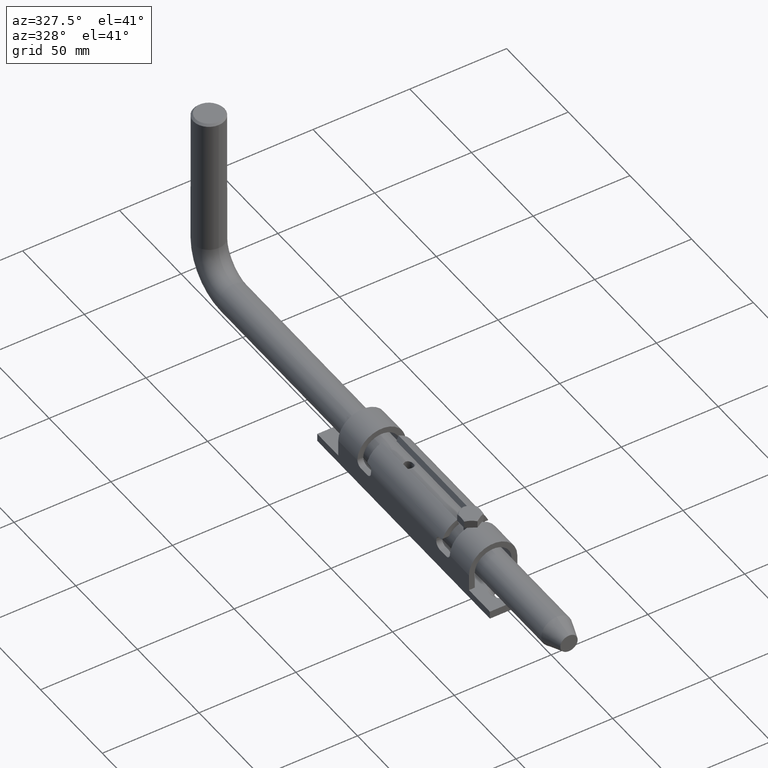
[diagram: clean part render]
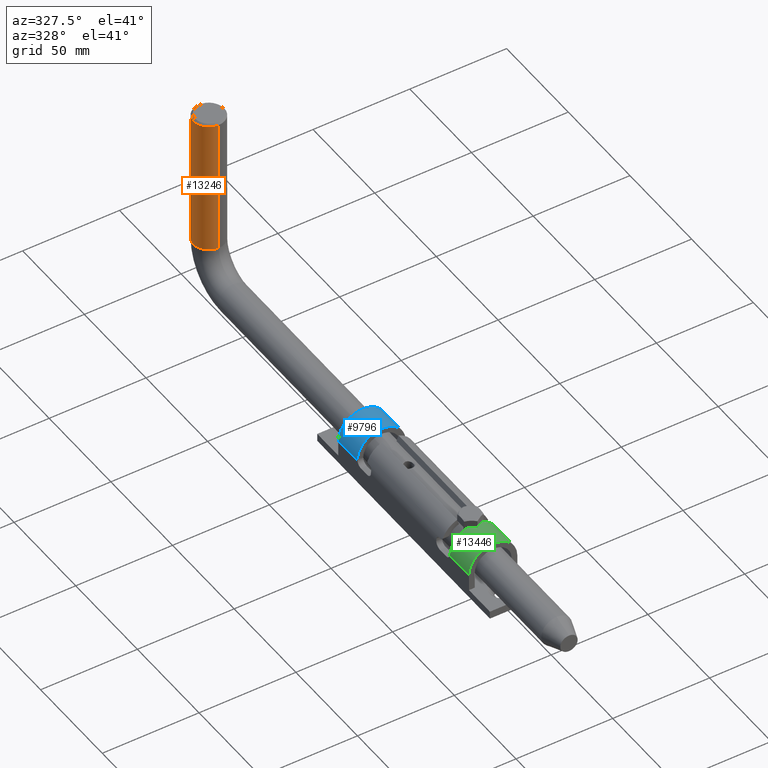
[diagram: same view with three faces highlighted in distinct colors, each labeled with its STEP entity id]
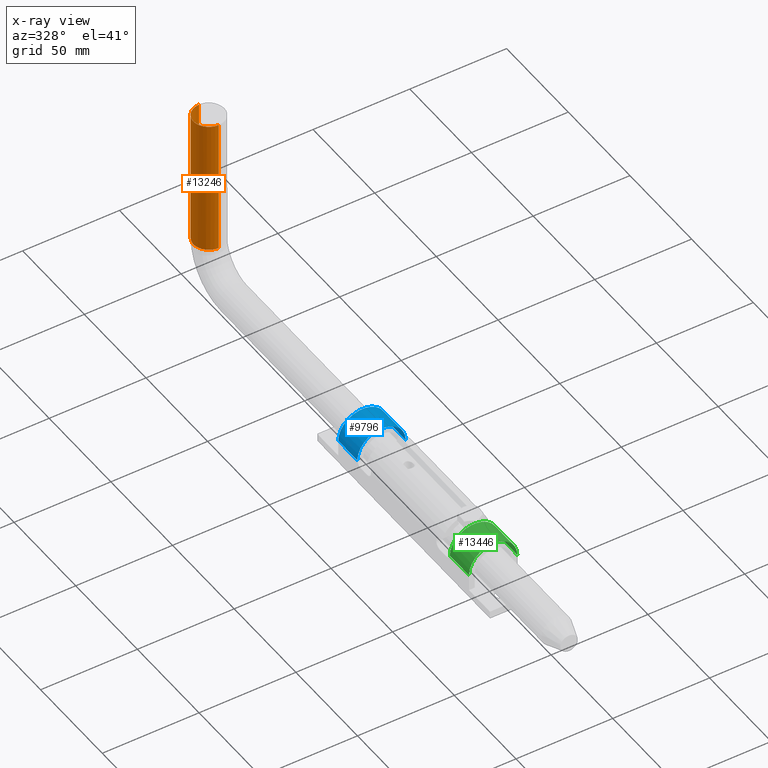
[diagram: x-ray of the same camera — body ghosted, the three highlighted faces saturated]
A machine part, auxiliary view with three faces highlighted in distinct colors.
The next image is the same camera in x-ray (body ghosted, the three faces saturated) — at least one of them is partly hidden behind the body in this view.
Their STEP definitions:

[orange] entity #13246 — the highlighted cylindrical surface (edge-blend (fillet) strip) has radius 8 mm, axis along (0, 0, 1).
#65 = CIRCLE ( 'NONE', #5183, 8.000000000000000000 ) ;
#1729 = VERTEX_POINT ( 'NONE', #17639 ) ;
#1798 = DIRECTION ( 'NONE',  ( 0.000000000000000000, 7.709882115452476194E-16, 1.000000000000000000 ) ) ;
#2365 = FACE_OUTER_BOUND ( 'NONE', #8507, .T. ) ;
#2414 = ORIENTED_EDGE ( 'NONE', *, *, #5781, .T. ) ;
#4025 = CARTESIAN_POINT ( 'NONE',  ( 9.797174393178882850E-16, 300.0000000000000000, 91.00000000000002842 ) ) ;
#4509 = ORIENTED_EDGE ( 'NONE', *, *, #13094, .T. ) ;
#4888 = LINE ( 'NONE', #16339, #11372 ) ;
#5015 = VERTEX_POINT ( 'NONE', #18970 ) ;
#5183 = AXIS2_PLACEMENT_3D ( 'NONE', #11615, #9803, #21358 ) ;
#5202 = LINE ( 'NONE', #14517, #14537 ) ;
#5503 = CIRCLE ( 'NONE', #10866, 8.000000000000007105 ) ;
#5781 = EDGE_CURVE ( 'NONE', #12727, #11569, #4888, .T. ) ;
#5949 = VERTEX_POINT ( 'NONE', #4025 ) ;
#6101 = DIRECTION ( 'NONE',  ( 0.000000000000000000, 7.709882115452476194E-16, 1.000000000000000000 ) ) ;
#7376 = DIRECTION ( 'NONE',  ( 0.000000000000000000, -1.000000000000000000, 0.000000000000000000 ) ) ;
#8507 = EDGE_LOOP ( 'NONE', ( #19725, #20888, #2414, #19670, #4509 ) ) ;
#8607 = CARTESIAN_POINT ( 'NONE',  ( 0.000000000000000000, 284.0000000000000000, 91.00000000000002842 ) ) ;
#9017 = DIRECTION ( 'NONE',  ( 1.000000000000000000, 0.000000000000000000, 0.000000000000000000 ) ) ;
#9803 = DIRECTION ( 'NONE',  ( 0.000000000000000000, 0.000000000000000000, -1.000000000000000000 ) ) ;
#10866 = AXIS2_PLACEMENT_3D ( 'NONE', #12240, #17291, #7376 ) ;
#11020 = AXIS2_PLACEMENT_3D ( 'NONE', #15550, #11870, #9017 ) ;
#11372 = VECTOR ( 'NONE', #1798, 1000.000000000000000 ) ;
#11569 = VERTEX_POINT ( 'NONE', #8607 ) ;
#11615 = CARTESIAN_POINT ( 'NONE',  ( 0.000000000000000000, 292.0000000000000000, 91.00000000000002842 ) ) ;
#11846 = EDGE_CURVE ( 'NONE', #1729, #12727, #5503, .T. ) ;
#11870 = DIRECTION ( 'NONE',  ( 0.000000000000000000, 0.000000000000000000, -1.000000000000000000 ) ) ;
#12125 = CARTESIAN_POINT ( 'NONE',  ( 0.000000000000000000, 283.9999999999999432, 20.00000000000000355 ) ) ;
#12240 = CARTESIAN_POINT ( 'NONE',  ( 0.000000000000000000, 291.9999999999999432, 20.00000000000000355 ) ) ;
#12727 = VERTEX_POINT ( 'NONE', #12125 ) ;
#13094 = EDGE_CURVE ( 'NONE', #5015, #5949, #65, .T. ) ;
#13246 = ADVANCED_FACE ( 'NONE', ( #2365 ), #20479, .T. ) ;
#14517 = CARTESIAN_POINT ( 'NONE',  ( 9.797174393178825657E-16, 299.9999999999999432, 19.99999999999999645 ) ) ;
#14537 = VECTOR ( 'NONE', #6101, 1000.000000000000000 ) ;
#14997 = DIRECTION ( 'NONE',  ( 0.000000000000000000, 7.709882115452476194E-16, 1.000000000000000000 ) ) ;
#15211 = DIRECTION ( 'NONE',  ( 0.000000000000000000, -1.000000000000000000, 8.673617379884027583E-16 ) ) ;
#15550 = CARTESIAN_POINT ( 'NONE',  ( 0.000000000000000000, 292.0000000000000000, 91.00000000000002842 ) ) ;
#16002 = EDGE_CURVE ( 'NONE', #1729, #5949, #5202, .T. ) ;
#16339 = CARTESIAN_POINT ( 'NONE',  ( 0.000000000000000000, 283.9999999999999432, 20.00000000000001066 ) ) ;
#16862 = CARTESIAN_POINT ( 'NONE',  ( 0.000000000000000000, 291.9999999999999432, 20.00000000000000355 ) ) ;
#17291 = DIRECTION ( 'NONE',  ( 0.000000000000000000, -1.734723475976805615E-16, 1.000000000000000000 ) ) ;
#17639 = CARTESIAN_POINT ( 'NONE',  ( 9.797174393178815797E-16, 299.9999999999999432, 20.00000000000000355 ) ) ;
#18670 = CIRCLE ( 'NONE', #11020, 8.000000000000000000 ) ;
#18970 = CARTESIAN_POINT ( 'NONE',  ( -8.000000000000000000, 292.0000000000000000, 91.00000000000002842 ) ) ;
#19498 = EDGE_CURVE ( 'NONE', #11569, #5015, #18670, .T. ) ;
#19670 = ORIENTED_EDGE ( 'NONE', *, *, #19498, .T. ) ;
#19725 = ORIENTED_EDGE ( 'NONE', *, *, #16002, .F. ) ;
#20479 = CYLINDRICAL_SURFACE ( 'NONE', #21122, 8.000000000000007105 ) ;
#20888 = ORIENTED_EDGE ( 'NONE', *, *, #11846, .T. ) ;
#21122 = AXIS2_PLACEMENT_3D ( 'NONE', #16862, #14997, #15211 ) ;
#21358 = DIRECTION ( 'NONE',  ( 1.000000000000000000, 0.000000000000000000, 0.000000000000000000 ) ) ;

[blue] entity #9796 — the highlighted cylindrical surface (edge-blend (fillet) strip) has radius 12.5 mm, axis along (-0, -1, -0).
#368 = DIRECTION ( 'NONE',  ( 0.000000000000000000, 0.000000000000000000, 1.000000000000000000 ) ) ;
#386 = CARTESIAN_POINT ( 'NONE',  ( -12.50000000000001066, 53.00000000000000000, 10.50000000000001066 ) ) ;
#964 = CARTESIAN_POINT ( 'NONE',  ( 12.48999599679679839, 37.50000000000000000, 11.00000000000000000 ) ) ;
#1588 = DIRECTION ( 'NONE',  ( 0.000000000000000000, 0.000000000000000000, 1.000000000000000000 ) ) ;
#2165 = CARTESIAN_POINT ( 'NONE',  ( 0.000000000000000000, 37.50000000000000000, 10.50000000000001066 ) ) ;
#2289 = EDGE_CURVE ( 'NONE', #11913, #15566, #10729, .T. ) ;
#2389 = AXIS2_PLACEMENT_3D ( 'NONE', #7432, #7212, #19013 ) ;
#2772 = AXIS2_PLACEMENT_3D ( 'NONE', #2165, #10280, #368 ) ;
#3066 = B_SPLINE_CURVE_WITH_KNOTS ( 'NONE', 3,
 ( #20268, #11902, #5377, #13495 ),
 .UNSPECIFIED., .F., .F.,
 ( 4, 4 ),
 ( 0.000000000000000000, 0.0005018572812874494719 ),
 .UNSPECIFIED. ) ;
#4186 = CARTESIAN_POINT ( 'NONE',  ( 12.50000000000000000, 37.48602441719216216, 10.66555868639240678 ) ) ;
#4359 = VERTEX_POINT ( 'NONE', #10300 ) ;
#4807 = EDGE_CURVE ( 'NONE', #10292, #11249, #3066, .T. ) ;
#5377 = CARTESIAN_POINT ( 'NONE',  ( -12.49671228295096448, 37.50000000000000000, 10.83222722564224227 ) ) ;
#5458 = EDGE_CURVE ( 'NONE', #11249, #17083, #16000, .T. ) ;
#5939 = CARTESIAN_POINT ( 'NONE',  ( 12.49999999999999112, 53.00000000000000000, 10.50000000000001066 ) ) ;
#5991 = CIRCLE ( 'NONE', #10779, 12.50000000000000178 ) ;
#6395 = EDGE_CURVE ( 'NONE', #17083, #15566, #18892, .T. ) ;
#6476 = DIRECTION ( 'NONE',  ( -0.000000000000000000, -1.000000000000000000, -0.000000000000000000 ) ) ;
#7212 = DIRECTION ( 'NONE',  ( -0.000000000000000000, -1.000000000000000000, -0.000000000000000000 ) ) ;
#7255 = CARTESIAN_POINT ( 'NONE',  ( -12.48999599679679839, 37.50000000000000000, 11.00000000000000000 ) ) ;
#7432 = CARTESIAN_POINT ( 'NONE',  ( 0.000000000000000000, 53.00000000000000000, 10.50000000000001066 ) ) ;
#8853 = CARTESIAN_POINT ( 'NONE',  ( -12.50000000000001066, 37.45803989154980229, 10.50000000000001066 ) ) ;
#9164 = CARTESIAN_POINT ( 'NONE',  ( 12.48999599679679839, 37.50000000000000000, 11.00000000000000000 ) ) ;
#9796 = ADVANCED_FACE ( 'NONE', ( #12830 ), #21339, .T. ) ;
#10280 = DIRECTION ( 'NONE',  ( 0.000000000000000000, 1.000000000000000000, 0.000000000000000000 ) ) ;
#10292 = VERTEX_POINT ( 'NONE', #8853 ) ;
#10300 = CARTESIAN_POINT ( 'NONE',  ( -12.50000000000001066, 53.00000000000000000, 10.50000000000001066 ) ) ;
#10729 = LINE ( 'NONE', #16387, #12538 ) ;
#10779 = AXIS2_PLACEMENT_3D ( 'NONE', #17918, #21241, #1588 ) ;
#11249 = VERTEX_POINT ( 'NONE', #7255 ) ;
#11714 = ORIENTED_EDGE ( 'NONE', *, *, #13248, .T. ) ;
#11902 = CARTESIAN_POINT ( 'NONE',  ( -12.50000000000000711, 37.48602441719216216, 10.66555868639240678 ) ) ;
#11913 = VERTEX_POINT ( 'NONE', #5939 ) ;
#11919 = ORIENTED_EDGE ( 'NONE', *, *, #5458, .T. ) ;
#11964 = DIRECTION ( 'NONE',  ( -0.000000000000000000, -1.000000000000000000, -0.000000000000000000 ) ) ;
#12216 = VECTOR ( 'NONE', #11964, 1000.000000000000000 ) ;
#12538 = VECTOR ( 'NONE', #6476, 1000.000000000000000 ) ;
#12830 = FACE_OUTER_BOUND ( 'NONE', #13823, .T. ) ;
#13248 = EDGE_CURVE ( 'NONE', #4359, #10292, #19455, .T. ) ;
#13495 = CARTESIAN_POINT ( 'NONE',  ( -12.48999599679679839, 37.50000000000000000, 11.00000000000000000 ) ) ;
#13537 = ORIENTED_EDGE ( 'NONE', *, *, #19214, .F. ) ;
#13823 = EDGE_LOOP ( 'NONE', ( #11714, #20223, #11919, #20154, #14358, #13537 ) ) ;
#14035 = CARTESIAN_POINT ( 'NONE',  ( 12.49999999999999112, 37.45803989154980229, 10.50000000000001066 ) ) ;
#14100 = CARTESIAN_POINT ( 'NONE',  ( 12.49671228295096448, 37.50000000000000000, 10.83222722564224227 ) ) ;
#14358 = ORIENTED_EDGE ( 'NONE', *, *, #2289, .F. ) ;
#15566 = VERTEX_POINT ( 'NONE', #19940 ) ;
#16000 = CIRCLE ( 'NONE', #2772, 12.50000000000000178 ) ;
#16387 = CARTESIAN_POINT ( 'NONE',  ( 12.49999999999999112, 53.00000000000000000, 10.50000000000001066 ) ) ;
#17083 = VERTEX_POINT ( 'NONE', #964 ) ;
#17918 = CARTESIAN_POINT ( 'NONE',  ( 0.000000000000000000, 53.00000000000000000, 10.50000000000001066 ) ) ;
#18892 = B_SPLINE_CURVE_WITH_KNOTS ( 'NONE', 3,
 ( #9164, #14100, #4186, #14035 ),
 .UNSPECIFIED., .F., .F.,
 ( 4, 4 ),
 ( 0.000000000000000000, 0.0005018572812874492551 ),
 .UNSPECIFIED. ) ;
#19013 = DIRECTION ( 'NONE',  ( 0.000000000000000000, 0.000000000000000000, -1.000000000000000000 ) ) ;
#19214 = EDGE_CURVE ( 'NONE', #4359, #11913, #5991, .T. ) ;
#19455 = LINE ( 'NONE', #386, #12216 ) ;
#19940 = CARTESIAN_POINT ( 'NONE',  ( 12.49999999999999112, 37.45803989154980229, 10.50000000000001066 ) ) ;
#20154 = ORIENTED_EDGE ( 'NONE', *, *, #6395, .T. ) ;
#20223 = ORIENTED_EDGE ( 'NONE', *, *, #4807, .T. ) ;
#20268 = CARTESIAN_POINT ( 'NONE',  ( -12.50000000000001066, 37.45803989154980229, 10.50000000000001066 ) ) ;
#21241 = DIRECTION ( 'NONE',  ( 0.000000000000000000, 1.000000000000000000, 0.000000000000000000 ) ) ;
#21339 = CYLINDRICAL_SURFACE ( 'NONE', #2389, 12.50000000000000000 ) ;

[green] entity #13446 — the highlighted cylindrical surface (edge-blend (fillet) strip) has radius 12.5 mm, axis along (-0, -1, -0).
#1136 = EDGE_CURVE ( 'NONE', #20199, #8101, #12580, .T. ) ;
#1885 = CARTESIAN_POINT ( 'NONE',  ( 12.49671228295096448, -37.50000000000000000, 10.83222722564224227 ) ) ;
#2111 = DIRECTION ( 'NONE',  ( -0.000000000000000000, -1.000000000000000000, -0.000000000000000000 ) ) ;
#2317 = LINE ( 'NONE', #10806, #20168 ) ;
#3207 = CARTESIAN_POINT ( 'NONE',  ( 0.000000000000000000, -37.50000000000000000, 10.50000000000001066 ) ) ;
#3222 = CARTESIAN_POINT ( 'NONE',  ( 12.49999999999999112, -37.45803989154979519, 10.50000000000001066 ) ) ;
#4492 = EDGE_CURVE ( 'NONE', #9151, #17529, #2317, .T. ) ;
#6491 = CIRCLE ( 'NONE', #12965, 12.50000000000000178 ) ;
#6730 = ORIENTED_EDGE ( 'NONE', *, *, #4492, .F. ) ;
#7293 = EDGE_CURVE ( 'NONE', #13578, #20199, #12682, .T. ) ;
#7596 = CARTESIAN_POINT ( 'NONE',  ( -12.48999599679679839, -37.50000000000000000, 11.00000000000000000 ) ) ;
#7618 = DIRECTION ( 'NONE',  ( 0.000000000000000000, 1.000000000000000000, 0.000000000000000000 ) ) ;
#8101 = VERTEX_POINT ( 'NONE', #8715 ) ;
#8657 = CARTESIAN_POINT ( 'NONE',  ( 12.49999999999999112, -53.00000000000000000, 10.50000000000001066 ) ) ;
#8715 = CARTESIAN_POINT ( 'NONE',  ( -12.50000000000001066, -53.00000000000000000, 10.50000000000001066 ) ) ;
#9151 = VERTEX_POINT ( 'NONE', #3222 ) ;
#9283 = DIRECTION ( 'NONE',  ( 0.000000000000000000, 0.000000000000000000, 1.000000000000000000 ) ) ;
#9495 = CARTESIAN_POINT ( 'NONE',  ( -12.49671228295096448, -37.50000000000000000, 10.83222722564224227 ) ) ;
#9580 = EDGE_CURVE ( 'NONE', #9151, #13788, #14055, .T. ) ;
#10657 = CYLINDRICAL_SURFACE ( 'NONE', #18369, 12.50000000000000000 ) ;
#10806 = CARTESIAN_POINT ( 'NONE',  ( 12.49999999999999112, 53.00000000000000000, 10.50000000000001066 ) ) ;
#10931 = FACE_OUTER_BOUND ( 'NONE', #14758, .T. ) ;
#11592 = ORIENTED_EDGE ( 'NONE', *, *, #9580, .T. ) ;
#11795 = ORIENTED_EDGE ( 'NONE', *, *, #19975, .T. ) ;
#11802 = CARTESIAN_POINT ( 'NONE',  ( 12.48999599679679839, -37.50000000000000000, 11.00000000000000000 ) ) ;
#12580 = LINE ( 'NONE', #19325, #15405 ) ;
#12682 = B_SPLINE_CURVE_WITH_KNOTS ( 'NONE', 3,
 ( #19400, #9495, #14640, #21206 ),
 .UNSPECIFIED., .F., .F.,
 ( 4, 4 ),
 ( 0.000000000000000000, 0.0005018572812874492551 ),
 .UNSPECIFIED. ) ;
#12911 = CARTESIAN_POINT ( 'NONE',  ( 12.49999999999999112, -37.45803989154979519, 10.50000000000001066 ) ) ;
#12965 = AXIS2_PLACEMENT_3D ( 'NONE', #17465, #7618, #9283 ) ;
#13446 = ADVANCED_FACE ( 'NONE', ( #10931 ), #10657, .T. ) ;
#13450 = ORIENTED_EDGE ( 'NONE', *, *, #18381, .F. ) ;
#13578 = VERTEX_POINT ( 'NONE', #7596 ) ;
#13703 = DIRECTION ( 'NONE',  ( 0.000000000000000000, 0.000000000000000000, -1.000000000000000000 ) ) ;
#13788 = VERTEX_POINT ( 'NONE', #15229 ) ;
#14055 = B_SPLINE_CURVE_WITH_KNOTS ( 'NONE', 3,
 ( #12911, #18096, #1885, #11802 ),
 .UNSPECIFIED., .F., .F.,
 ( 4, 4 ),
 ( 0.000000000000000000, 0.0005018572812874493635 ),
 .UNSPECIFIED. ) ;
#14271 = DIRECTION ( 'NONE',  ( -0.000000000000000000, -1.000000000000000000, -0.000000000000000000 ) ) ;
#14567 = DIRECTION ( 'NONE',  ( -0.000000000000000000, -1.000000000000000000, -0.000000000000000000 ) ) ;
#14640 = CARTESIAN_POINT ( 'NONE',  ( -12.50000000000000000, -37.48602441719216216, 10.66555868639240678 ) ) ;
#14758 = EDGE_LOOP ( 'NONE', ( #6730, #11592, #13450, #16471, #19970, #11795 ) ) ;
#14787 = DIRECTION ( 'NONE',  ( 0.000000000000000000, 1.000000000000000000, 0.000000000000000000 ) ) ;
#15057 = CIRCLE ( 'NONE', #16597, 12.50000000000000178 ) ;
#15229 = CARTESIAN_POINT ( 'NONE',  ( 12.48999599679679839, -37.50000000000000000, 11.00000000000000000 ) ) ;
#15405 = VECTOR ( 'NONE', #14271, 1000.000000000000000 ) ;
#16471 = ORIENTED_EDGE ( 'NONE', *, *, #7293, .T. ) ;
#16597 = AXIS2_PLACEMENT_3D ( 'NONE', #3207, #14787, #21419 ) ;
#16930 = CARTESIAN_POINT ( 'NONE',  ( -12.50000000000001066, -37.45803989154979519, 10.50000000000001066 ) ) ;
#17465 = CARTESIAN_POINT ( 'NONE',  ( 0.000000000000000000, -53.00000000000000000, 10.50000000000001066 ) ) ;
#17529 = VERTEX_POINT ( 'NONE', #8657 ) ;
#18096 = CARTESIAN_POINT ( 'NONE',  ( 12.50000000000000355, -37.48602441719216216, 10.66555868639240678 ) ) ;
#18369 = AXIS2_PLACEMENT_3D ( 'NONE', #20262, #2111, #13703 ) ;
#18381 = EDGE_CURVE ( 'NONE', #13578, #13788, #15057, .T. ) ;
#19325 = CARTESIAN_POINT ( 'NONE',  ( -12.50000000000001066, 53.00000000000000000, 10.50000000000001066 ) ) ;
#19400 = CARTESIAN_POINT ( 'NONE',  ( -12.48999599679679839, -37.50000000000000000, 11.00000000000000000 ) ) ;
#19970 = ORIENTED_EDGE ( 'NONE', *, *, #1136, .T. ) ;
#19975 = EDGE_CURVE ( 'NONE', #8101, #17529, #6491, .T. ) ;
#20168 = VECTOR ( 'NONE', #14567, 1000.000000000000000 ) ;
#20199 = VERTEX_POINT ( 'NONE', #16930 ) ;
#20262 = CARTESIAN_POINT ( 'NONE',  ( 0.000000000000000000, 53.00000000000000000, 10.50000000000001066 ) ) ;
#21206 = CARTESIAN_POINT ( 'NONE',  ( -12.50000000000001066, -37.45803989154979519, 10.50000000000001066 ) ) ;
#21419 = DIRECTION ( 'NONE',  ( 0.000000000000000000, 0.000000000000000000, 1.000000000000000000 ) ) ;